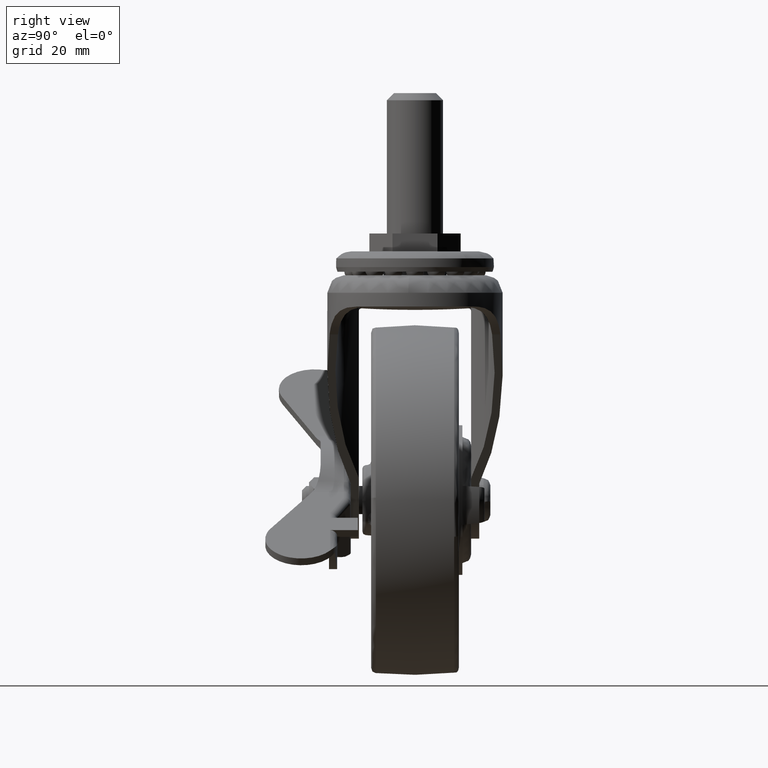
[diagram: clean part render]
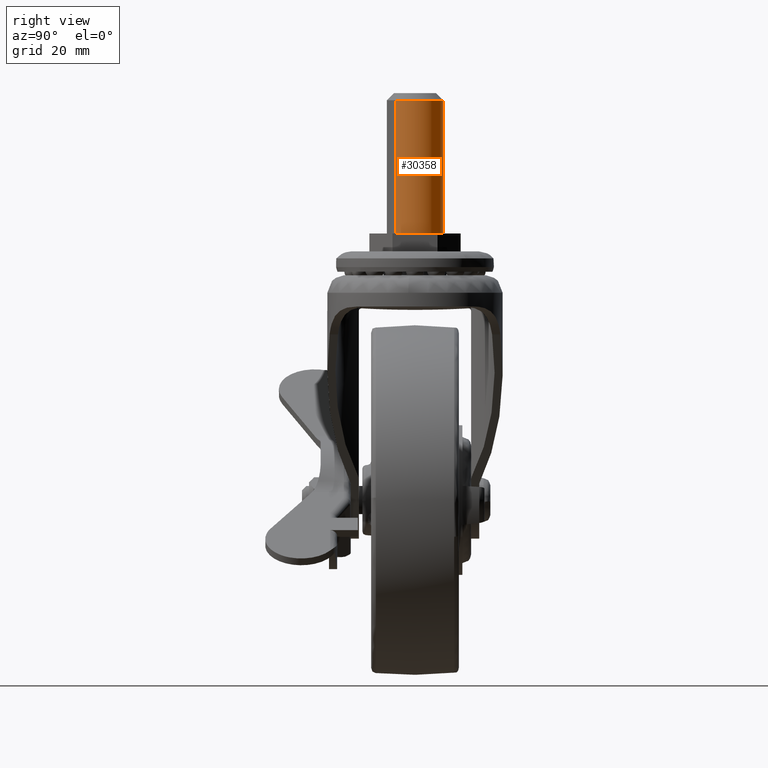
[diagram: same view with one face highlighted and labeled with its STEP entity id]
A machine part, right view. The second image highlights one B-rep face of the part: STEP entity #30358.
In plain terms, the highlighted face is a freeform B-spline surface patch.
Its self-contained STEP definition (entity closure, byte-faithful):
#30243=CARTESIAN_POINT('',(25.891554856476279,5.165936307056203,114.950004000000080));
#30244=CARTESIAN_POINT('',(26.039401734147877,5.340757382698318,114.950004000000080));
#30245=CARTESIAN_POINT('',(26.197005031901700,5.506836605550030,114.950004000000010));
#30246=CARTESIAN_POINT('',(31.703841637451738,11.309831573648330,114.950004000000040));
#30247=CARTESIAN_POINT('',(37.506836605550028,5.802994968098299,114.950004000000010));
#30248=CARTESIAN_POINT('',(43.309831573648331,0.296158362548269,114.950004000000040));
#30249=CARTESIAN_POINT('',(37.802994968098297,-5.506836605550030,114.950004000000010));
#30250=CARTESIAN_POINT('',(25.891554856476279,5.165936307056203,75.026253999999923));
#30251=CARTESIAN_POINT('',(26.039401734147877,5.340757382698318,75.026253999999909));
#30252=CARTESIAN_POINT('',(26.197005031901700,5.506836605550030,75.026253999999909));
#30253=CARTESIAN_POINT('',(31.703841637451738,11.309831573648330,75.026253999999895));
#30254=CARTESIAN_POINT('',(37.506836605550028,5.802994968098299,75.026253999999909));
#30255=CARTESIAN_POINT('',(43.309831573648331,0.296158362548269,75.026253999999895));
#30256=CARTESIAN_POINT('',(37.802994968098297,-5.506836605550030,75.026253999999909));
#30264=(BOUNDED_SURFACE()B_SPLINE_SURFACE(2,1,((#30243,#30250),(#30244,#30251),(#30245,#30252),(#30246,#30253),(#30247,#30254),(#30248,#30255),(#30249,#30256)),.UNSPECIFIED.,.F.,.F.,.U.)B_SPLINE_SURFACE_WITH_KNOTS((3,2,2,3),(2,2),(0.0,0.530193359837562,13.785027355776601,27.039861351715640),(0.0,39.923750000000133),.UNSPECIFIED.)GEOMETRIC_REPRESENTATION_ITEM()RATIONAL_B_SPLINE_SURFACE(((0.977505800795127,0.977505800795127),(0.988284271247462,0.988284271247462),(1.0,1.0),(0.707106781186548,0.707106781186548),(1.0,1.0),(0.707106781186548,0.707106781186548),(1.0,1.0)))REPRESENTATION_ITEM('')SURFACE());
#30265=CARTESIAN_POINT('',(25.891555207823110,5.165936009926591,76.000003999999905));
#30266=VERTEX_POINT('',#30265);
#30267=CARTESIAN_POINT('',(32.000001866474449,7.999999999999782,76.000003999999919));
#30268=VERTEX_POINT('',#30267);
#30269=CARTESIAN_POINT('',(25.891555207823110,5.165936009926591,76.000003999999905));
#30270=CARTESIAN_POINT('',(26.428887044830429,5.802024126059906,76.000004000000004));
#30271=CARTESIAN_POINT('',(27.482870513784420,6.711855312156398,76.000003999999421));
#30272=CARTESIAN_POINT('',(28.986657070414889,7.446993662812103,76.000004000000516));
#30273=CARTESIAN_POINT('',(30.407267952008830,7.884333678272423,76.000003999999294));
#30274=CARTESIAN_POINT('',(31.348377106964790,8.000166052052625,76.000004000000501));
#30275=CARTESIAN_POINT('',(32.000001866474449,7.999999999999782,76.000003999999919));
#30276=B_SPLINE_CURVE_WITH_KNOTS('',3,(#30269,#30270,#30271,#30272,#30273,#30274,#30275),.UNSPECIFIED.,.F.,.U.,(4,1,1,1,4),(0.000000062116494,2.497841521503124,4.126819259280371,4.995647887819755,6.950468013171541),.UNSPECIFIED.);
#30277=EDGE_CURVE('',#30266,#30268,#30276,.T.);
#30278=ORIENTED_EDGE('',*,*,#30277,.F.);
#30279=CARTESIAN_POINT('',(25.891555207823110,5.165936009926591,114.000004000000000));
#30280=VERTEX_POINT('',#30279);
#30281=CARTESIAN_POINT('',(25.891555207823110,5.165936009926591,114.000004000000000));
#30282=CARTESIAN_POINT('',(25.891555207823110,5.165936009926591,76.000003999999905));
#30283=QUASI_UNIFORM_CURVE('',1,(#30281,#30282),.UNSPECIFIED.,.F.,.U.);
#30284=EDGE_CURVE('',#30280,#30266,#30283,.T.);
#30285=ORIENTED_EDGE('',*,*,#30284,.F.);
#30286=CARTESIAN_POINT('',(32.000001866474449,7.999999999999782,114.000004000000000));
#30287=VERTEX_POINT('',#30286);
#30288=CARTESIAN_POINT('',(25.891555207823110,5.165936009926591,114.000004000000000));
#30289=CARTESIAN_POINT('',(26.335588206954640,5.691219775432917,114.000004000000000));
#30290=CARTESIAN_POINT('',(27.360175096311281,6.626190481280843,114.000004000000300));
#30291=CARTESIAN_POINT('',(29.430212410519029,7.709047876396054,114.000004000000000));
#30292=CARTESIAN_POINT('',(31.058689977203830,8.000756762060249,114.000004000000300));
#30293=CARTESIAN_POINT('',(32.000001866474449,7.999999999999782,114.000004000000000));
#30294=B_SPLINE_CURVE_WITH_KNOTS('',3,(#30288,#30289,#30290,#30291,#30292,#30293),.UNSPECIFIED.,.F.,.U.,(4,1,1,4),(0.000000062116494,2.063426639520564,4.126819259280371,6.950468013171541),.UNSPECIFIED.);
#30295=EDGE_CURVE('',#30280,#30287,#30294,.T.);
#30296=ORIENTED_EDGE('',*,*,#30295,.T.);
#30297=CARTESIAN_POINT('',(40.0,0.0,114.000004000000000));
#30298=VERTEX_POINT('',#30297);
#30299=CARTESIAN_POINT('',(32.000001866474449,7.999999999999782,114.000004000000000));
#30300=CARTESIAN_POINT('',(32.916396329323099,8.000618560477786,114.000004000000200));
#30301=CARTESIAN_POINT('',(34.323104845522103,7.755532823177984,114.000003999999810));
#30302=CARTESIAN_POINT('',(35.961726687765463,6.992483793660683,114.000004000000000));
#30303=CARTESIAN_POINT('',(37.179373825536508,6.157169335530920,114.000004000000300));
#30304=CARTESIAN_POINT('',(38.203769669021767,5.132834079928775,114.000004000000000));
#30305=CARTESIAN_POINT('',(39.024812592182862,3.903785261909208,114.000004000000200));
#30306=CARTESIAN_POINT('',(39.766957768095189,2.257670885119086,114.000003999999810));
#30307=CARTESIAN_POINT('',(40.000597206677043,0.916392725510217,114.000004000000300));
#30308=CARTESIAN_POINT('',(40.0,0.0,114.000004000000000));
#30309=B_SPLINE_CURVE_WITH_KNOTS('',3,(#30299,#30300,#30301,#30302,#30303,#30304,#30305,#30306,#30307,#30308),.UNSPECIFIED.,.F.,.U.,(4,1,1,1,1,1,1,4),(0.000000189133276,2.748903871648620,4.221549275021474,5.399651143181124,7.166802085069806,8.541247260859304,9.817546308511703,12.566448411033701),.UNSPECIFIED.);
#30310=EDGE_CURVE('',#30287,#30298,#30309,.T.);
#30311=ORIENTED_EDGE('',*,*,#30310,.T.);
#30312=CARTESIAN_POINT('',(37.802994714591463,-5.506836364980723,114.000004232989600));
#30313=VERTEX_POINT('',#30312);
#30314=CARTESIAN_POINT('',(40.0,0.0,114.000004000000000));
#30315=CARTESIAN_POINT('',(40.000160938095377,-0.632700640290085,114.000004026769200));
#30316=CARTESIAN_POINT('',(39.875469964807408,-1.676537690563181,114.000004070933000));
#30317=CARTESIAN_POINT('',(39.433968680576278,-3.034336421693582,114.000004128379500));
#30318=CARTESIAN_POINT('',(38.811172096840323,-4.283077203004782,114.000004181213900));
#30319=CARTESIAN_POINT('',(38.216829016871323,-5.070928789983236,114.000004214546490));
#30320=CARTESIAN_POINT('',(37.802994714591463,-5.506836364980723,114.000004232989600));
#30321=B_SPLINE_CURVE_WITH_KNOTS('',3,(#30314,#30315,#30316,#30317,#30318,#30319,#30320),.UNSPECIFIED.,.F.,.U.,(4,1,1,1,4),(0.000000047459459,1.898065318434295,3.131763486723620,4.270624910186795,6.073781276207583),.UNSPECIFIED.);
#30322=EDGE_CURVE('',#30298,#30313,#30321,.T.);
#30323=ORIENTED_EDGE('',*,*,#30322,.T.);
#30324=CARTESIAN_POINT('',(37.802994665510028,-5.506836247465170,76.000003999999905));
#30325=VERTEX_POINT('',#30324);
#30326=CARTESIAN_POINT('',(37.802994714591463,-5.506836364980723,114.000004232989600));
#30327=CARTESIAN_POINT('',(37.802994665510028,-5.506836247465170,76.000003999999905));
#30328=QUASI_UNIFORM_CURVE('',1,(#30326,#30327),.UNSPECIFIED.,.F.,.U.);
#30329=EDGE_CURVE('',#30313,#30325,#30328,.T.);
#30330=ORIENTED_EDGE('',*,*,#30329,.T.);
#30331=CARTESIAN_POINT('',(40.0,0.0,76.000003999999905));
#30332=VERTEX_POINT('',#30331);
#30333=CARTESIAN_POINT('',(40.0,0.0,76.000003999999905));
#30334=CARTESIAN_POINT('',(40.000246212173849,-0.695986648093225,76.000003999999905));
#30335=CARTESIAN_POINT('',(39.871169527690661,-1.676520592767344,76.000004000000047));
#30336=CARTESIAN_POINT('',(39.410778188293527,-3.092492810755276,76.000003999999635));
#30337=CARTESIAN_POINT('',(38.815117553343377,-4.286808884861862,76.000004000000757));
#30338=CARTESIAN_POINT('',(38.173228081404972,-5.116785956851066,76.000003999999279));
#30339=CARTESIAN_POINT('',(37.802994665510028,-5.506836247465170,76.000003999999905));
#30340=B_SPLINE_CURVE_WITH_KNOTS('',3,(#30333,#30334,#30335,#30336,#30337,#30338,#30339),.UNSPECIFIED.,.F.,.U.,(4,1,1,1,4),(0.000000047456536,2.087871830032178,2.942017790613119,4.460431305380872,6.073781180526594),.UNSPECIFIED.);
#30341=EDGE_CURVE('',#30332,#30325,#30340,.T.);
#30342=ORIENTED_EDGE('',*,*,#30341,.F.);
#30343=CARTESIAN_POINT('',(32.000001866474449,7.999999999999782,76.000003999999919));
#30344=CARTESIAN_POINT('',(32.818160020530229,8.000397636320779,76.000003999999905));
#30345=CARTESIAN_POINT('',(34.225110328772239,7.782206392804970,76.000003999999848));
#30346=CARTESIAN_POINT('',(35.880560944142999,7.048233635632093,76.000003999999961));
#30347=CARTESIAN_POINT('',(37.179379921859983,6.157177692761367,76.000004000000189));
#30348=CARTESIAN_POINT('',(38.203764849856597,5.132826744370738,76.000003999999464));
#30349=CARTESIAN_POINT('',(39.024816645362527,3.903786949512002,76.000004000000516));
#30350=CARTESIAN_POINT('',(39.766948964543367,2.257669162873850,76.000003999998896));
#30351=CARTESIAN_POINT('',(40.000602594883361,0.916393378453232,76.000004000000700));
#30352=CARTESIAN_POINT('',(40.0,0.0,76.000003999999905));
#30353=B_SPLINE_CURVE_WITH_KNOTS('',3,(#30343,#30344,#30345,#30346,#30347,#30348,#30349,#30350,#30351,#30352),.UNSPECIFIED.,.F.,.U.,(4,1,1,1,1,1,1,4),(0.000000189133276,2.454371079789045,4.221549275021474,5.399651143181124,7.166802085069806,8.541247260859304,9.817546308511703,12.566448411033701),.UNSPECIFIED.);
#30354=EDGE_CURVE('',#30268,#30332,#30353,.T.);
#30355=ORIENTED_EDGE('',*,*,#30354,.F.);
#30356=EDGE_LOOP('',(#30278,#30285,#30296,#30311,#30323,#30330,#30342,#30355));
#30357=FACE_OUTER_BOUND('',#30356,.T.);
#30358=ADVANCED_FACE('',(#30357),#30264,.T.);